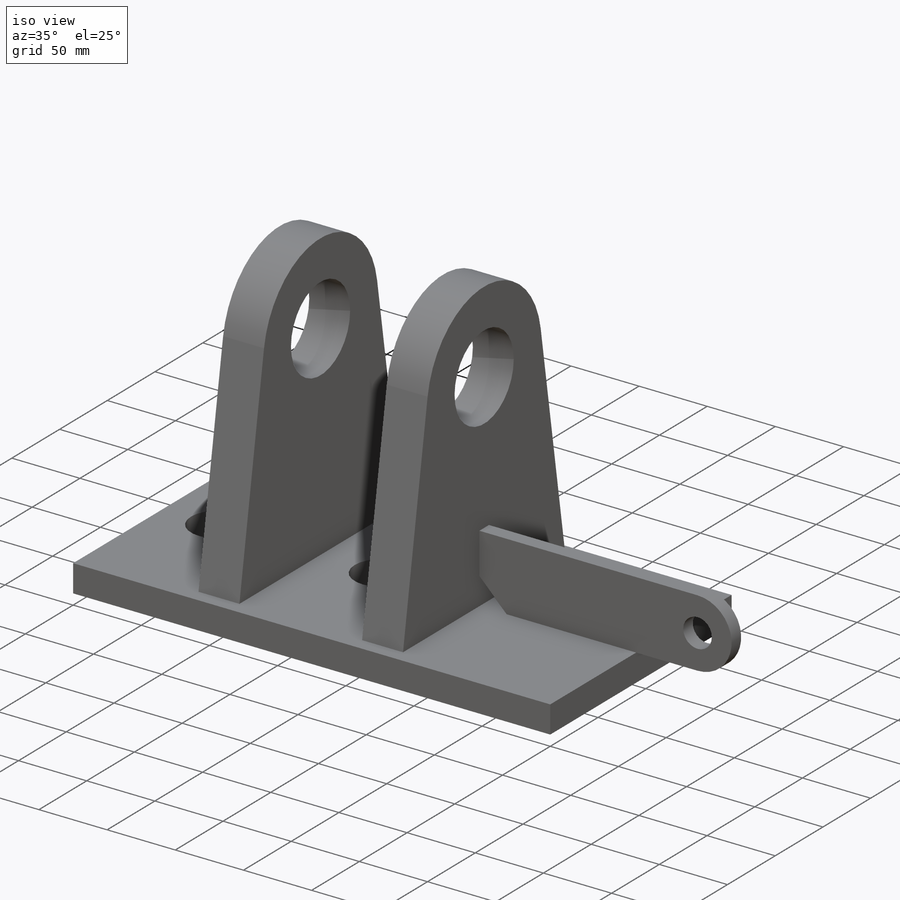
[diagram: iso view]
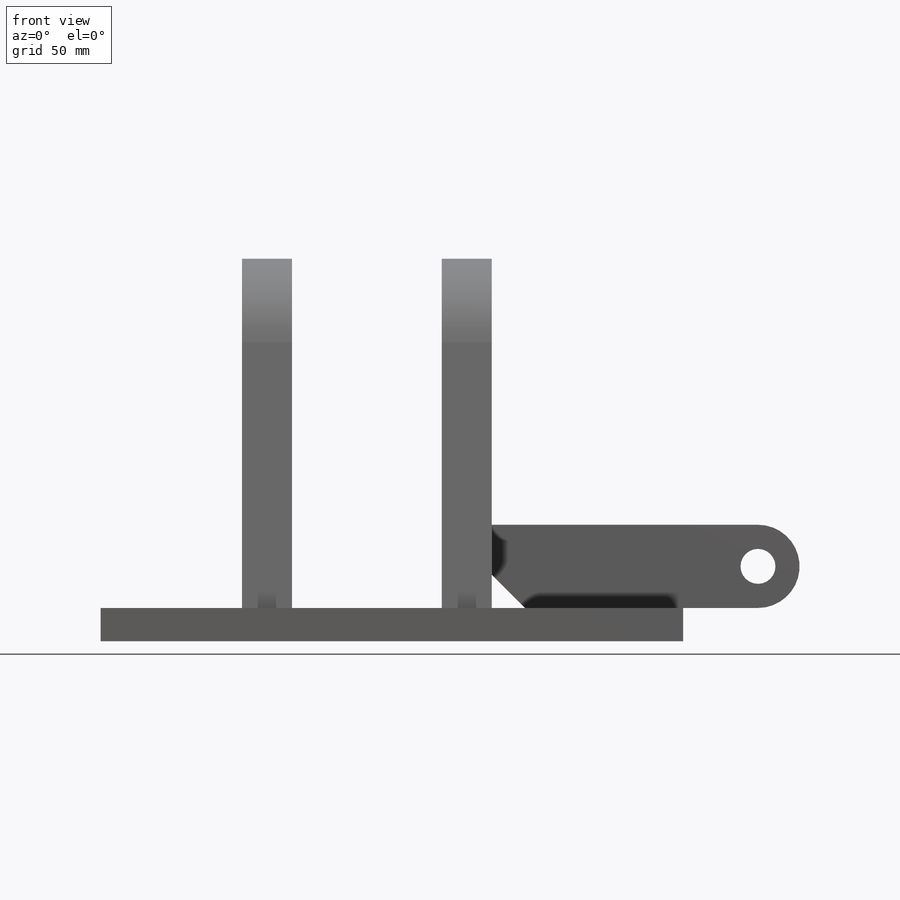
[diagram: front view]
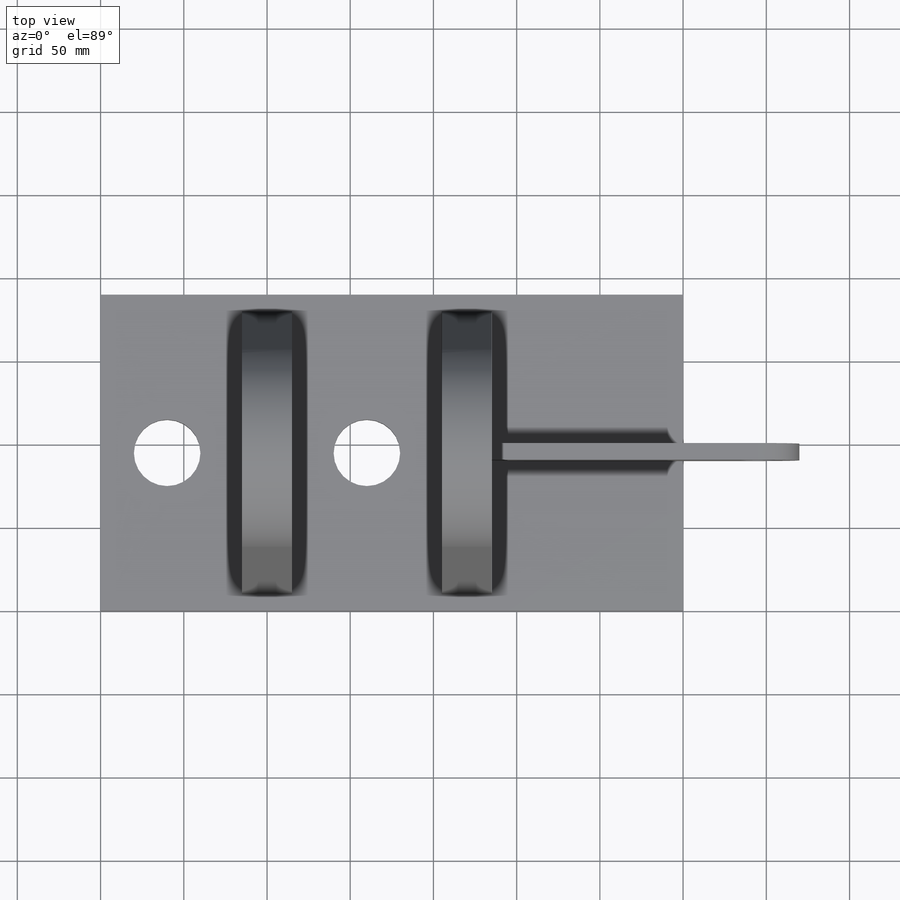
[diagram: top view]
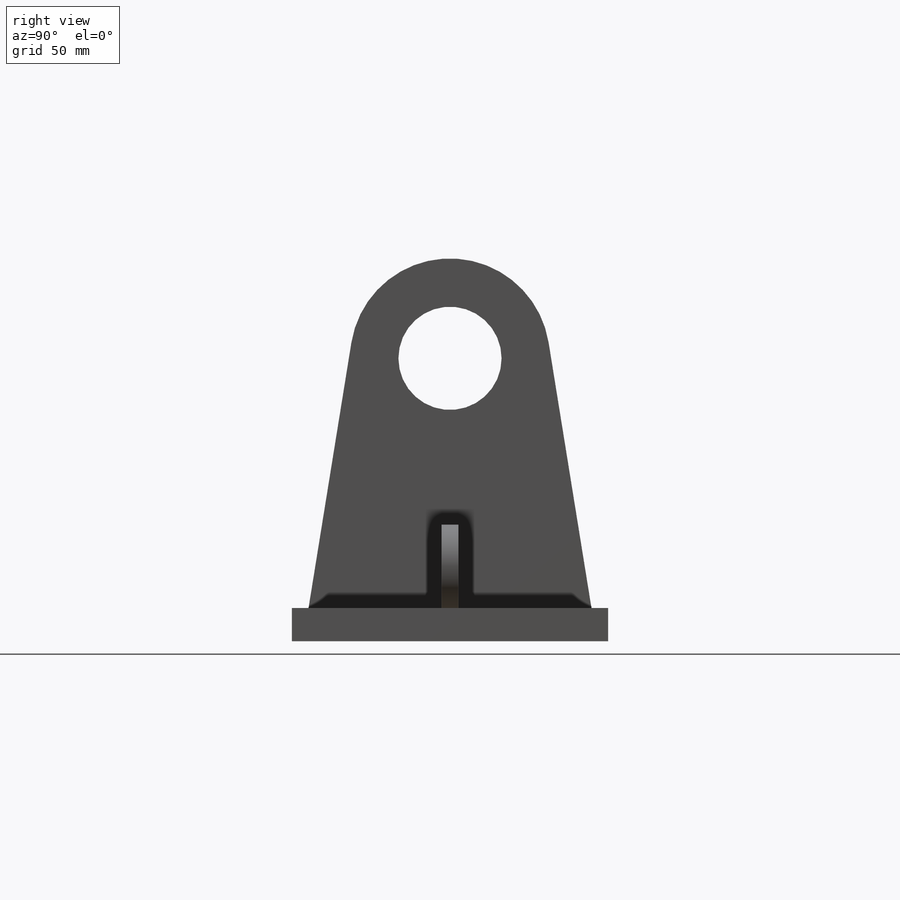
[diagram: right view]
SOLIDWORKS PART (.sldprt)
format: sldprt  version: not decoded by parser v0  size: 407,040 bytes
history: native  units: mm
features: sketch x23, sheet_metal_op x8, plane x6, hole x4, material x1, cut_extrude x1 + 9 further entries (+10 scaffold rows collapsed; 7 parser-record rows omitted)
feature tree (69):
  scaffold x10  (default folders/planes/origin — collapsed)
  material  "1.0037"
  "Zuschnittslistenelement2"
  "Zuschnittslistenelement3"
  plane  "Ebene vorne"
  plane  "Ebene oben"
  plane  "Ebene rechts"
  sketch  "Skizze1"  dims[c1.D1=350.0mm c1.D2=190.0mm c2.D1=3.88mm c2.D2=0.35 c2.D3=0.0mm c2.D6=500.0mm]
  sheet_metal_op  "Basis-Blech1"
  hole  "Ø40.0 (40) Durchmesser Bohrung1"  Diameter=40mm Depth=20mm
  sketch  "Skizze7"  dims[D1=40.0mm D2=160.0mm]
  sketch  "Skizze6"  dims[hole-wizard template sketch: 59 standard entries collapsed; hole parameters kept: c18.Bohrerdurchmesser=40.0mm c18.Bohrungstiefe=20.0mm]
  plane  "Ebene1"  Offset=85mm
  sketch  "Skizze8"  dims[D3=60.0mm D1=10.0mm D2=10.0mm D4=150.0mm D5=150.0mm]
  hole  "Basis-Blech2"  Diameter=3.88mm
  plane  "Ebene2"  Offset=90mm
  sketch  "Skizze11"  dims[D1=0.0mm]
  hole  "Basis-Blech3"  Diameter=3.88mm
  plane  "Ebene3"  Offset=90mm
  sketch  "Skizze14"  dims[c1.D3=20.0mm c1.D1=50.0mm c1.D2=21.0mm c2.D1=180.0mm c2.D2=50.0mm]
  hole  "Basis-Blech4"  Diameter=3.88mm
  sketch  "Skizze17"  dims[D1=62.0mm]
  cut_extrude  "Schnitt-Linear austragen1"  [1 undecoded]
  sketch  "Biegung-Linien1"
  sketch  "Rahmen1"
  sheet_metal_op  "Blech2"
  "Abwicklung2"
  sketch  "Biegung-Linien2"
  sketch  "Rahmen2"
  parser-record x7  (decoder bookkeeping rows leaked as tree rows — omitted from the tree; the rows remain in map.json)
  sheet_metal_op  "Blech3"
  "Abwicklung2"
  sketch  "Biegung-Linien2"
  sketch  "Rahmen2"
  sheet_metal_op  "Blech4"
  "Abwicklung4"
  sketch  "Biegung-Linien3"
  sketch  "Rahmen3"
  sheet_metal_op  "Blech5"
  "Abwicklung5"
  sketch  "Biegung-Linien4"
  sketch  "Rahmen4"
  sheet_metal_op  "Blech6"
  "Abwicklung6"
  sketch  "Biegung-Linien5"
  sketch  "Rahmen5"
  sheet_metal_op  "Blech7"
  "Abwicklung4"
  sketch  "Biegung-Linien3"
  sketch  "Rahmen3"
  sheet_metal_op  "Blech8"
  "Abwicklung5"
  sketch  "Biegung-Linien4"
  sketch  "Rahmen4"
decode coverage: 11 of 36 modeling features carry decoded parameters; 9 rows unclassified (native names shown)
note: ~ marks probable driven/reference dimensions
note: 1 parameter value undecoded
note: suppression state not decoded; provenance and decode notes live in map.json
